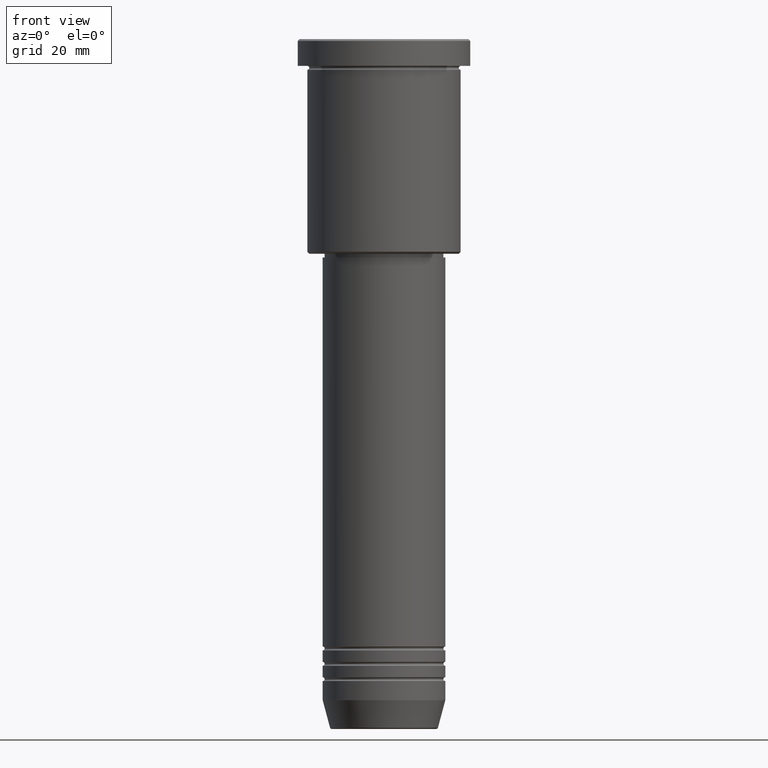
[diagram: clean part render]
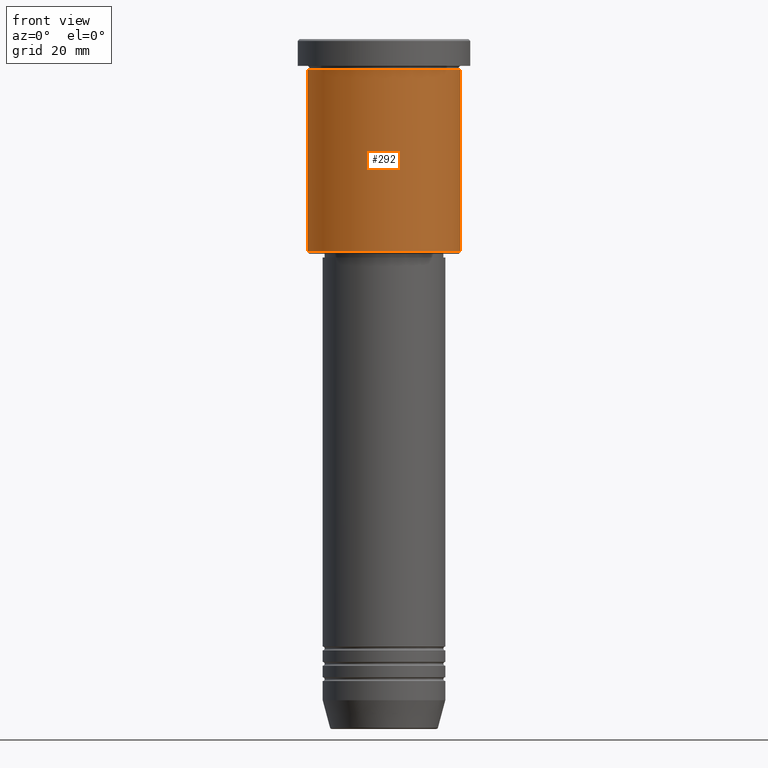
[diagram: same view with one face highlighted and labeled with its STEP entity id]
A machine part, front view. The second image highlights one B-rep face of the part: STEP entity #292.
In plain terms, the highlighted cylindrical surface (partial cylindrical patch) has radius 20 mm, axis along (-0, -0, 1).
Its self-contained STEP definition (entity closure, byte-faithful):
#2 = ORIENTED_EDGE ( 'NONE', *, *, #108, .T. ) ;
#42 = DIRECTION ( 'NONE',  ( -0.000000000000000000, -0.000000000000000000, 1.000000000000000000 ) ) ;
#54 = VERTEX_POINT ( 'NONE', #899 ) ;
#63 = VERTEX_POINT ( 'NONE', #979 ) ;
#83 = CARTESIAN_POINT ( 'NONE',  ( 0.000000000000000000, 0.000000000000000000, 0.000000000000000000 ) ) ;
#108 = EDGE_CURVE ( 'NONE', #971, #950, #743, .T. ) ;
#109 = CARTESIAN_POINT ( 'NONE',  ( 20.00000000000000355, 0.000000000000000000, 0.000000000000000000 ) ) ;
#263 = AXIS2_PLACEMENT_3D ( 'NONE', #706, #1149, #788 ) ;
#282 = CIRCLE ( 'NONE', #263, 20.00000000000000355 ) ;
#289 = DIRECTION ( 'NONE',  ( -0.000000000000000000, -0.000000000000000000, 1.000000000000000000 ) ) ;
#292 = ADVANCED_FACE ( 'NONE', ( #983 ), #439, .T. ) ;
#362 = VECTOR ( 'NONE', #42, 1000.000000000000000 ) ;
#439 = CYLINDRICAL_SURFACE ( 'NONE', #837, 20.00000000000000355 ) ;
#527 = ORIENTED_EDGE ( 'NONE', *, *, #691, .F. ) ;
#571 = ORIENTED_EDGE ( 'NONE', *, *, #783, .T. ) ;
#620 = AXIS2_PLACEMENT_3D ( 'NONE', #860, #289, #756 ) ;
#651 = DIRECTION ( 'NONE',  ( -0.000000000000000000, -0.000000000000000000, 1.000000000000000000 ) ) ;
#690 = ORIENTED_EDGE ( 'NONE', *, *, #1028, .F. ) ;
#691 = EDGE_CURVE ( 'NONE', #54, #63, #758, .T. ) ;
#703 = CIRCLE ( 'NONE', #620, 20.00000000000000000 ) ;
#706 = CARTESIAN_POINT ( 'NONE',  ( 0.000000000000000000, 0.000000000000000000, -55.49999999999998579 ) ) ;
#743 = LINE ( 'NONE', #109, #1003 ) ;
#756 = DIRECTION ( 'NONE',  ( 1.000000000000000000, 0.000000000000000000, 0.000000000000000000 ) ) ;
#758 = LINE ( 'NONE', #844, #362 ) ;
#783 = EDGE_CURVE ( 'NONE', #54, #971, #282, .T. ) ;
#788 = DIRECTION ( 'NONE',  ( -1.000000000000000000, 0.000000000000000000, 0.000000000000000000 ) ) ;
#808 = DIRECTION ( 'NONE',  ( 1.000000000000000000, 0.000000000000000000, 0.000000000000000000 ) ) ;
#837 = AXIS2_PLACEMENT_3D ( 'NONE', #83, #1068, #808 ) ;
#844 = CARTESIAN_POINT ( 'NONE',  ( -20.00000000000000355, 2.449293598294706907E-15, 0.000000000000000000 ) ) ;
#848 = CARTESIAN_POINT ( 'NONE',  ( 20.00000000000000355, 0.000000000000000000, -55.49999999999998579 ) ) ;
#860 = CARTESIAN_POINT ( 'NONE',  ( 0.000000000000000000, 0.000000000000000000, -7.999999999999994671 ) ) ;
#899 = CARTESIAN_POINT ( 'NONE',  ( -20.00000000000000355, 2.449293598294706907E-15, -55.49999999999998579 ) ) ;
#935 = EDGE_LOOP ( 'NONE', ( #527, #571, #2, #690 ) ) ;
#950 = VERTEX_POINT ( 'NONE', #1039 ) ;
#971 = VERTEX_POINT ( 'NONE', #848 ) ;
#979 = CARTESIAN_POINT ( 'NONE',  ( -20.00000000000000000, 2.449293598294706513E-15, -7.999999999999994671 ) ) ;
#983 = FACE_OUTER_BOUND ( 'NONE', #935, .T. ) ;
#1003 = VECTOR ( 'NONE', #651, 1000.000000000000000 ) ;
#1028 = EDGE_CURVE ( 'NONE', #63, #950, #703, .T. ) ;
#1039 = CARTESIAN_POINT ( 'NONE',  ( 20.00000000000000000, 0.000000000000000000, -7.999999999999994671 ) ) ;
#1068 = DIRECTION ( 'NONE',  ( -0.000000000000000000, -0.000000000000000000, 1.000000000000000000 ) ) ;
#1149 = DIRECTION ( 'NONE',  ( -0.000000000000000000, -0.000000000000000000, 1.000000000000000000 ) ) ;